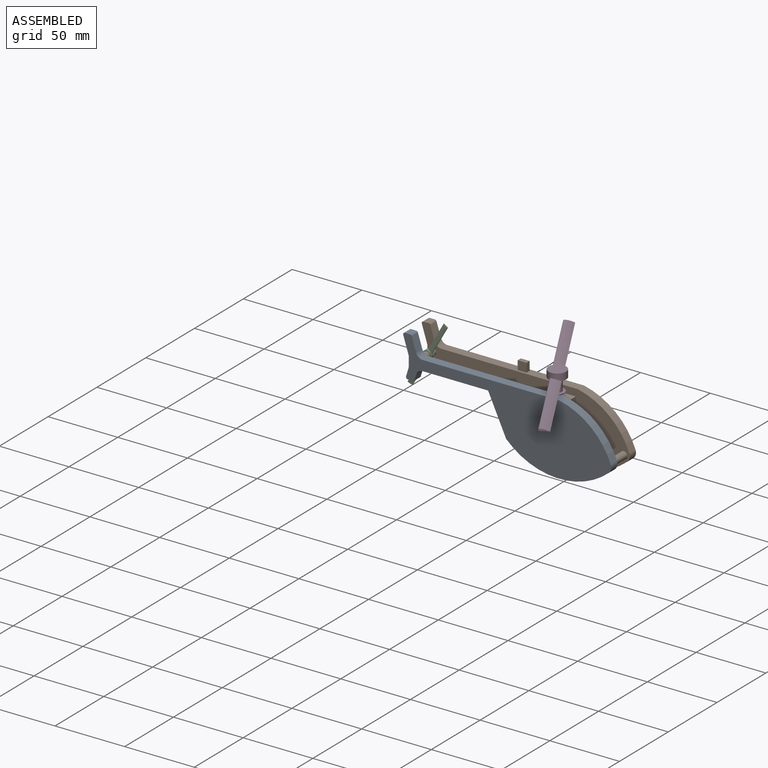
[diagram: assembled view]
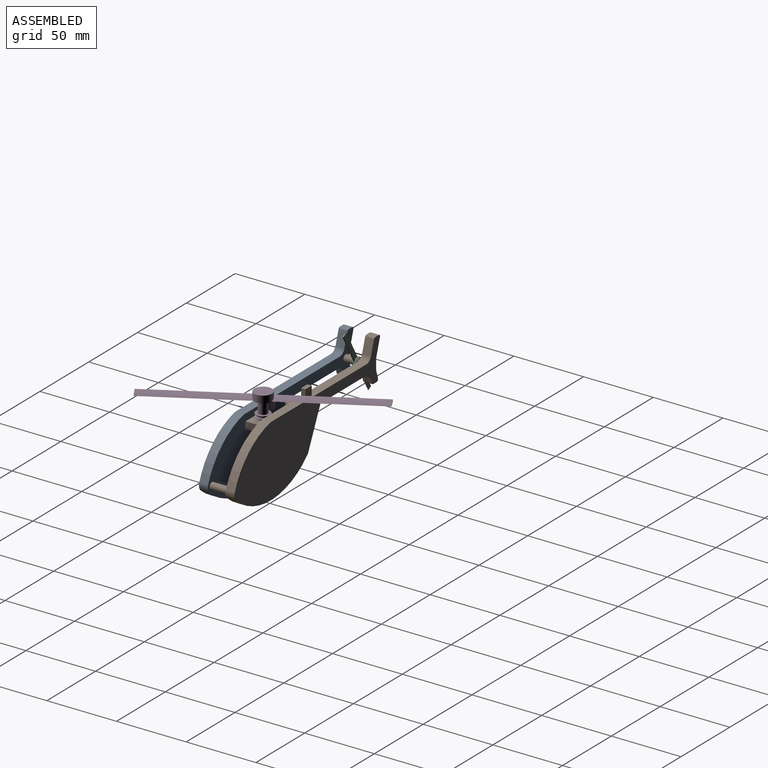
[diagram: assembled view, second angle]
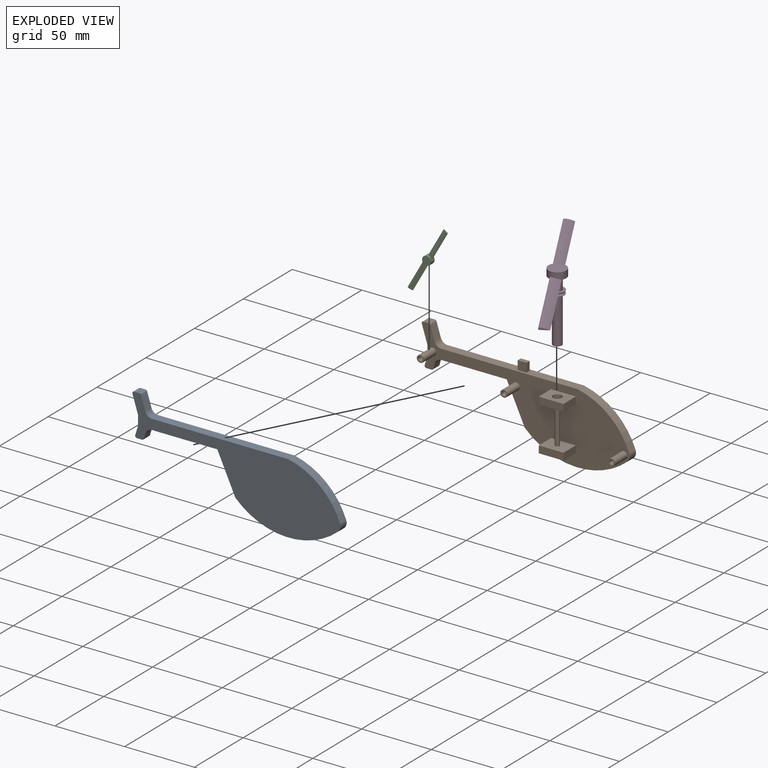
[diagram: exploded view]
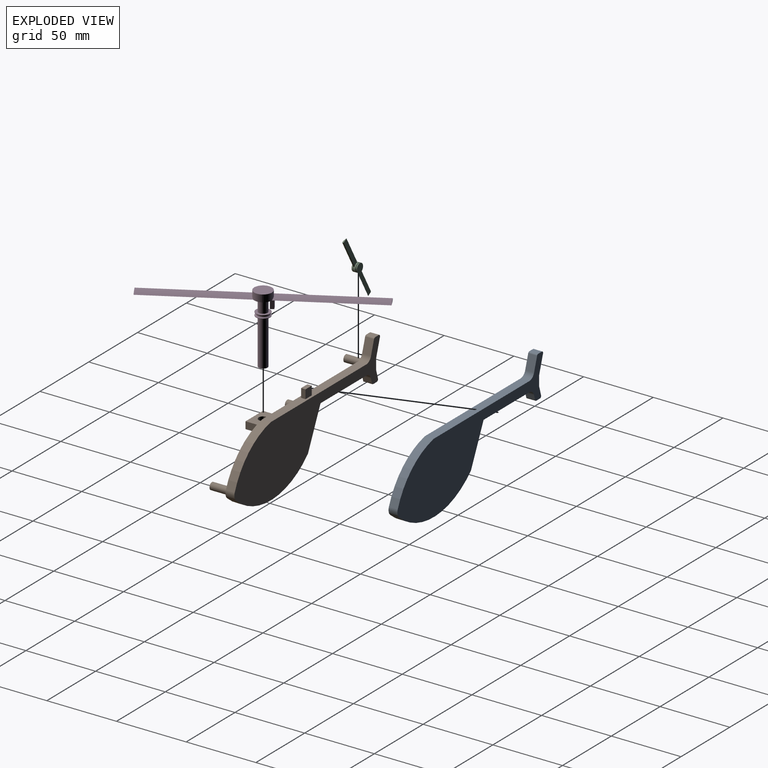
[diagram: exploded view, second angle]
ASSEMBLY  parts=4 mates=6
PART A: 21 faces, bbox 149.3x6.4x65 mm
  f0: plane 149.3x65.03mm, normal (0,1,0), area 3908.7mm2, adj f1,f2,f3,f4,f5,f6,f7,f8
  f1: plane 6.35x3.69mm, normal (0,0,1), area 23.4mm2, adj f0,f13,f17,f18
  f2: plane 9.79x6.35mm, normal (0.95,0,0.3), area 65.2mm2, adj f0,f13,f15,f17
  f3: plane 12.57x6.35mm, normal (-0.95,0,-0.3), area 83.7mm2, adj f0,f12,f13,f18
  f4: plane 97.88x6.35mm, normal (0,0,1), area 621.5mm2, adj f0,f5,f13,f15
  f5: cylinder r=50.87mm len=37mm, axis (0,1,0), area 323.4mm2, adj f0,f4,f13,f14
  f6: cylinder r=54.16mm len=73.68mm, axis (0,1,0), area 514.8mm2, adj f0,f7,f13,f14
  f7: plane 27.89x12.93mm, normal (-0.91,0,-0.42), area 195.2mm2, adj f0,f6,f8,f13
  f8: plane 46.79x6.35mm, normal (0,0,-1), area 297.1mm2, adj f0,f7,f13,f16
  f9: plane 6.35x3.65mm, normal (0.96,0,-0.29), area 24.2mm2, adj f0,f13,f16,f20
  f10: plane 6.35x3.7mm, normal (0,0,-1), area 23.5mm2, adj f0,f13,f19,f20
  f11: plane 6.54x6.35mm, normal (-0.96,0,0.29), area 43.4mm2, adj f0,f12,f13,f19
  f12: plane 7.24x6.35mm, normal (-1,0,0), area 46mm2, adj f0,f3,f11,f13
  f13: plane 149.3x65.03mm, normal (0,-1,0), area 3908.7mm2, adj f1,f2,f3,f4,f5,f6,f7,f8
  f14: cylinder r=5.08mm len=6.35mm, axis (0,1,0), area 39.1mm2, adj f0,f5,f6,f13
  f15: cylinder r=5.08mm len=6.35mm, axis (0,-1,0), area 40.8mm2, adj f0,f2,f4,f13
  f16: cylinder r=5.08mm len=6.35mm, axis (0,-1,0), area 41.3mm2, adj f0,f8,f9,f13
  f17: cylinder r=1.27mm len=6.35mm, axis (0,1,0), area 10.2mm2, adj f0,f1,f2,f13
  f18: cylinder r=1.27mm len=6.35mm, axis (0,1,0), area 15.1mm2, adj f0,f1,f3,f13
  f19: cylinder r=1.27mm len=6.35mm, axis (0,1,0), area 15mm2, adj f0,f10,f11,f13
  f20: cylinder r=1.27mm len=6.35mm, axis (0,1,0), area 10.3mm2, adj f0,f9,f10,f13
PART B: 51 faces, bbox 149.3x19.1x65 mm
  f0: cylinder r=1.59mm len=25.32mm, axis (0,0,-1), area 252.5mm2, adj f32,f37
  f1: cylinder r=54.16mm len=73.68mm, axis (0,1,0), area 514.8mm2, adj f12,f13,f14,f39
  f2: cylinder r=50.87mm len=37mm, axis (0,1,0), area 323.4mm2, adj f3,f13,f14,f39
  f3: plane 97.88x6.35mm, normal (0,0,1), area 601.4mm2, adj f2,f13,f14,f44,f46,f47,f48,f49
  f4: plane 9.79x6.35mm, normal (0.95,0,0.3), area 65.2mm2, adj f13,f14,f40,f44
  f5: plane 6.35x3.69mm, normal (0,0,1), area 23.4mm2, adj f13,f14,f40,f41
  f6: plane 12.57x6.35mm, normal (-0.95,0,-0.3), area 83.7mm2, adj f7,f13,f14,f41
  f7: plane 7.24x6.35mm, normal (-1,0,0), area 46mm2, adj f6,f8,f13,f14
  f8: plane 6.54x6.35mm, normal (-0.96,0,0.29), area 43.4mm2, adj f7,f13,f14,f42
  f9: plane 6.35x3.7mm, normal (0,0,-1), area 23.5mm2, adj f13,f14,f42,f43
  f10: plane 6.35x3.65mm, normal (0.96,0,-0.29), area 24.2mm2, adj f13,f14,f43,f45
  f11: plane 46.79x6.35mm, normal (0,0,-1), area 297.1mm2, adj f12,f13,f14,f45
  f12: plane 27.89x12.93mm, normal (-0.91,0,-0.42), area 195.2mm2, adj f1,f11,f13,f14
  f13: plane 149.3x65.03mm, normal (0,-1,0), area 3667.2mm2, adj f1,f2,f3,f4,f5,f6,f7,f8
  f14: plane 149.3x65.03mm, normal (0,1,0), area 3908.7mm2, adj f1,f2,f3,f4,f5,f6,f7,f8
  f15: cylinder r=1.59mm len=12.7mm, axis (0,1,0), area 126.7mm2, adj f17,f18
  f16: cylinder r=2.54mm len=12.7mm, axis (0,1,0), area 202.7mm2, adj f13,f17
  f17: plane 5.08x5.08mm, normal (0,-1,0), area 12.4mm2, adj f15,f16
  f18: plane 3.18x3.18mm, normal (0,-1,0), area 7.9mm2, adj f15
  f19: cylinder r=1.59mm len=12.7mm, axis (0,1,0), area 126.7mm2, adj f21,f22
  f20: cylinder r=2.54mm len=12.7mm, axis (0,1,0), area 202.7mm2, adj f13,f21
  f21: plane 5.08x5.08mm, normal (0,-1,0), area 12.4mm2, adj f19,f20
  f22: plane 3.18x3.18mm, normal (0,-1,0), area 7.9mm2, adj f19
  f23: plane 17.78x12.7mm, normal (0,0,1), area 194.1mm2, adj f13,f24,f26,f27,f38
  f24: plane 12.7x5.08mm, normal (-1,0,0), area 64.5mm2, adj f13,f23,f25,f27
  f25: plane 17.78x12.7mm, normal (0,0,-1), area 194.1mm2, adj f13,f24,f26,f27,f38
  f26: plane 12.7x5.08mm, normal (1,0,0), area 64.5mm2, adj f13,f23,f25,f27
  f27: plane 17.78x5.08mm, normal (0,-1,0), area 90.3mm2, adj f23,f24,f25,f26
  f28: cylinder r=1.59mm len=12.7mm, axis (0,1,0), area 126.7mm2, adj f30,f31
  f29: cylinder r=2.54mm len=12.7mm, axis (0,1,0), area 202.7mm2, adj f13,f30
  f30: plane 5.08x5.08mm, normal (0,-1,0), area 12.4mm2, adj f28,f29
  f31: plane 3.18x3.18mm, normal (0,-1,0), area 7.9mm2, adj f28
  f32: plane 17.78x12.7mm, normal (0,0,1), area 217.9mm2, adj f0,f13,f33,f35,f36
  f33: plane 12.7x5.08mm, normal (-1,0,0), area 64.5mm2, adj f13,f32,f34,f36
  f34: plane 17.78x12.7mm, normal (0,0,-1), area 225.8mm2, adj f13,f33,f35,f36
  f35: plane 12.7x5.08mm, normal (1,0,0), area 64.5mm2, adj f13,f32,f34,f36
  f36: plane 17.78x5.08mm, normal (0,-1,0), area 90.3mm2, adj f32,f33,f34,f35
  f37: plane 3.18x3.18mm, normal (0,0,1), area 7.9mm2, adj f0
  f38: cylinder r=3.17mm len=6.35mm, axis (0,0,1), area 101.3mm2, adj f23,f25
  f39: cylinder r=5.08mm len=6.35mm, axis (0,1,0), area 39.1mm2, adj f1,f2,f13,f14
  f40: cylinder r=1.27mm len=6.35mm, axis (0,1,0), area 10.2mm2, adj f4,f5,f13,f14
  f41: cylinder r=1.27mm len=6.35mm, axis (0,1,0), area 15.1mm2, adj f5,f6,f13,f14
  f42: cylinder r=1.27mm len=6.35mm, axis (0,1,0), area 15mm2, adj f8,f9,f13,f14
  f43: cylinder r=1.27mm len=6.35mm, axis (0,1,0), area 10.3mm2, adj f9,f10,f13,f14
  f44: cylinder r=5.08mm len=6.35mm, axis (0,-1,0), area 40.8mm2, adj f3,f4,f13,f14
  f45: cylinder r=5.08mm len=6.35mm, axis (0,-1,0), area 41.3mm2, adj f10,f11,f13,f14
  f46: plane 6.35x6.35mm, normal (0,1,0), area 40.3mm2, adj f3,f47,f49,f50
  f47: plane 6.35x3.18mm, normal (-1,0,0), area 20.2mm2, adj f3,f46,f48,f50
  f48: plane 6.35x6.35mm, normal (0,-1,0), area 40.3mm2, adj f3,f47,f49,f50
  f49: plane 6.35x3.18mm, normal (1,0,0), area 20.2mm2, adj f3,f46,f48,f50
  f50: plane 6.35x3.18mm, normal (0,0,1), area 20.2mm2, adj f46,f47,f48,f49
PART C: 13 faces, bbox 7.5x3.8x50.8 mm
  f0: cylinder r=3.17mm len=6.35mm, axis (0,1,0), area 49.8mm2, adj f1,f2,f3,f5,f7,f8,f9,f10
  f1: cylinder r=6.7mm len=22.65mm, axis (0,0,-1), area 75.5mm2, adj f0,f2,f3,f4
  f2: plane 22.65x3.18mm, normal (0,-1,0), area 71mm2, adj f0,f1,f3,f4
  f3: cylinder r=0.52mm len=23.03mm, axis (0,0,-1), area 37.5mm2, adj f0,f1,f2,f4
  f4: plane 3.7x1.04mm, normal (0,0,-1), area 2.6mm2, adj f1,f2,f3
  f5: plane 6.35x6.35mm, normal (0,1,0), area 31.7mm2, adj f0
  f6: plane 3.7x1.04mm, normal (0,0,1), area 2.6mm2, adj f7,f8,f9
  f7: cylinder r=6.7mm len=22.65mm, axis (0,0,-1), area 74.5mm2, adj f0,f6,f8,f9
  f8: cylinder r=0.52mm len=23.03mm, axis (0,0,-1), area 38.5mm2, adj f0,f6,f7,f9
  f9: plane 22.65x3.18mm, normal (0,-1,0), area 71mm2, adj f0,f6,f7,f8
  f10: torus R=3.17mm, axis (0,1,0), area 23.3mm2, adj f0,f12
  f11: plane 6.35x6.35mm, normal (0,-1,0), area 31.7mm2, adj f12
  f12: cylinder r=3.17mm len=6.35mm, axis (0,1,0), area 4.6mm2, adj f10,f11
PART D: 22 faces, bbox 12.7x152.4x49.5 mm
  f0: cylinder r=3.17mm len=8.89mm, axis (0,0,1), area 177.3mm2, adj f4,f15
  f1: cylinder r=14.85mm len=70.74mm, axis (0,1,0), area 468.1mm2, adj f2,f4,f6,f8
  f2: cylinder r=0.8mm len=71.25mm, axis (0,1,0), area 174.4mm2, adj f1,f4,f6,f8
  f3: cylinder r=14.85mm len=70.74mm, axis (0,1,0), area 468.1mm2, adj f4,f5,f7,f8
  f4: plane 152.4x12.7mm, normal (0,0,-1), area 977.5mm2, adj f0,f1,f2,f3,f5,f6,f7,f8
  f5: cylinder r=0.8mm len=71.25mm, axis (0,1,0), area 174.4mm2, adj f3,f4,f7,f8
  f6: plane 7.15x1.61mm, normal (0,-1,0), area 7.7mm2, adj f1,f2,f4
  f7: plane 7.15x1.61mm, normal (0,1,0), area 7.7mm2, adj f3,f4,f5
  f8: cylinder r=6.35mm len=12.7mm, axis (0,0,-1), area 186.3mm2, adj f1,f2,f3,f4,f5,f9
  f9: plane 12.7x12.7mm, normal (0,0,1), area 126.7mm2, adj f8
  f10: plane 6.35x2.54mm, normal (-1,0,0), area 16.1mm2, adj f4,f11,f13,f14
  f11: plane 6.35x3.18mm, normal (0,1,0), area 20.2mm2, adj f4,f10,f12,f14
  f12: plane 6.35x2.54mm, normal (1,0,0), area 16.1mm2, adj f4,f11,f13,f14
  f13: plane 6.35x3.18mm, normal (0,-1,0), area 20.2mm2, adj f4,f10,f12,f14
  f14: plane 3.18x2.54mm, normal (0,0,-1), area 8.1mm2, adj f10,f11,f12,f13
  f15: plane 10.16x10.16mm, normal (0,0,1), area 49.4mm2, adj f0,f19
  f16: plane 10.16x10.16mm, normal (0,0,-1), area 49.4mm2, adj f17,f21
  f17: cylinder r=5.08mm len=10.16mm, axis (0,0,1), area 10.1mm2, adj f16,f18
  f18: torus R=5.08mm, axis (0,0,1), area 84.1mm2, adj f17,f19
  f19: cylinder r=5.08mm len=10.16mm, axis (0,0,1), area 10.1mm2, adj f15,f18
  f20: plane 6.35x6.35mm, normal (0,0,-1), area 31.7mm2, adj f21
  f21: cylinder r=3.17mm len=33.02mm, axis (0,0,1), area 658.7mm2, adj f16,f20
PLACE A t=(-103.85,-6.06,-5.11)mm
PLACE B t=(48.55,12.99,-5.11)mm fixed
PLACE C rot(axis=(-0.25,0,-0.97),180deg) t=(-199.51,32.24,57.21)mm
PLACE D rot(axis=(0,0,-1),150.5deg) t=(-45.63,-25.58,82.77)mm
MATE planar B.f12 <-> A.f7  axis (-0.91,0,-0.42) through (-34.11,9.81,8.84)mm
MATE revolute C.f0 <-> B.f15  axis (0,-1,0) through (-93.69,0.29,26.62)mm
MATE planar A.f0 <-> B.f19  axis (0,1,0) through (-7.95,-6.06,9.08)mm
MATE revolute D.f0 <-> B.f38  axis (0,0,1) through (0.18,0.29,-6.72)mm
MATE parallel C.f0 <-> B.f13  axis (0,1,0) through (-93.69,4.1,26.62)mm
MATE planar A.f4 <-> B.f3  axis (0,0,1) through (-38.49,-9.24,30.02)mm
